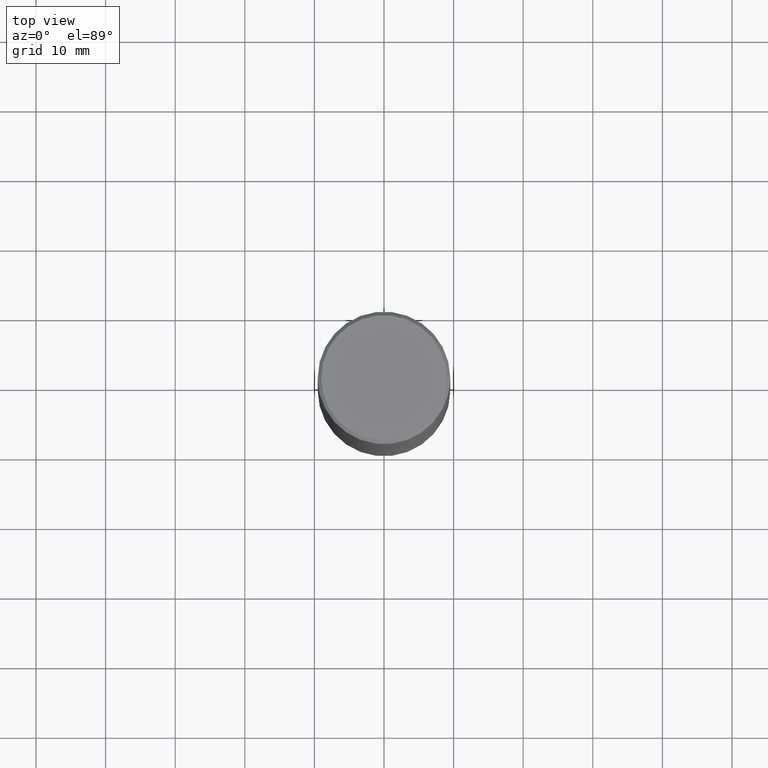
[diagram: clean part render]
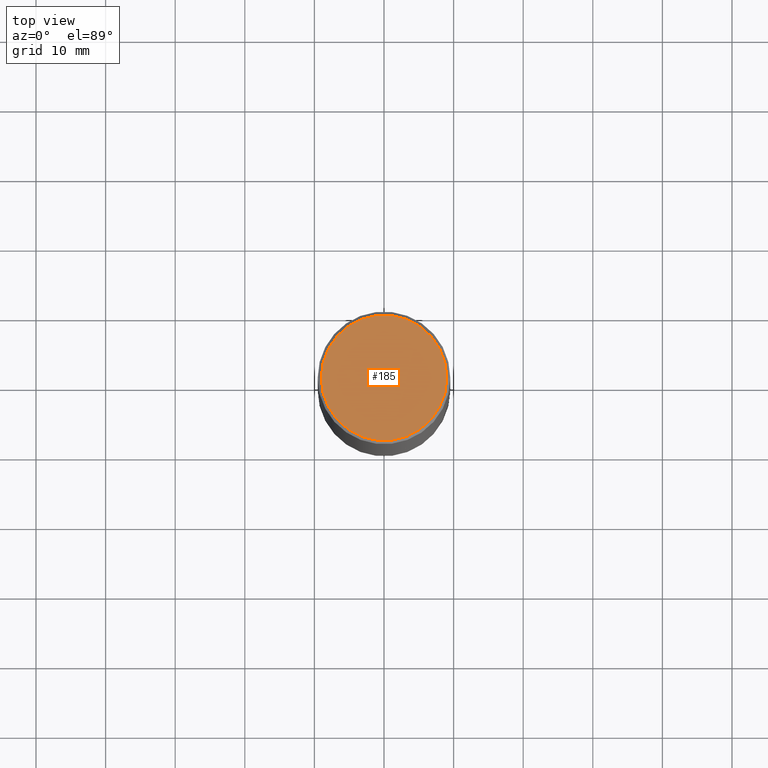
[diagram: same view with one face highlighted and labeled with its STEP entity id]
A machine part, top view. The second image highlights one B-rep face of the part: STEP entity #185.
In plain terms, the highlighted planar face has unit normal (0, -0, -1).
Its self-contained STEP definition (entity closure, byte-faithful):
#11 = FACE_OUTER_BOUND ( 'NONE', #81, .T. ) ;
#29 = EDGE_CURVE ( 'NONE', #92, #67, #360, .T. ) ;
#67 = VERTEX_POINT ( 'NONE', #314 ) ;
#78 = AXIS2_PLACEMENT_3D ( 'NONE', #274, #272, #293 ) ;
#81 = EDGE_LOOP ( 'NONE', ( #236, #263 ) ) ;
#92 = VERTEX_POINT ( 'NONE', #415 ) ;
#96 = EDGE_CURVE ( 'NONE', #67, #92, #399, .T. ) ;
#122 = DIRECTION ( 'NONE',  ( 1.000000000000000000, -6.982962677686265922E-15, 4.878367520217864080E-29 ) ) ;
#142 = AXIS2_PLACEMENT_3D ( 'NONE', #378, #212, #122 ) ;
#167 = DIRECTION ( 'NONE',  ( 2.438088387897960049E-29, -3.491481338843145188E-15, -1.000000000000000000 ) ) ;
#185 = ADVANCED_FACE ( 'NONE', ( #11 ), #275, .F. ) ;
#191 = AXIS2_PLACEMENT_3D ( 'NONE', #337, #167, #362 ) ;
#212 = DIRECTION ( 'NONE',  ( -2.445468806185136597E-29, 3.491481338843145583E-15, 1.000000000000000000 ) ) ;
#236 = ORIENTED_EDGE ( 'NONE', *, *, #29, .T. ) ;
#263 = ORIENTED_EDGE ( 'NONE', *, *, #96, .T. ) ;
#272 = DIRECTION ( 'NONE',  ( -2.445468806185136597E-29, 3.491481338843145583E-15, 1.000000000000000000 ) ) ;
#274 = CARTESIAN_POINT ( 'NONE',  ( -4.801716505942010742E-45, 6.855578583750057175E-31, 1.963515745446189127E-16 ) ) ;
#275 = PLANE ( 'NONE',  #191 ) ;
#293 = DIRECTION ( 'NONE',  ( 1.000000000000000000, -6.982962677686265922E-15, 4.878367520217864080E-29 ) ) ;
#314 = CARTESIAN_POINT ( 'NONE',  ( 0.3549999999999999267, -2.538996582575040259E-15, 1.963515745446364895E-16 ) ) ;
#337 = CARTESIAN_POINT ( 'NONE',  ( 2.478951750578623815E-15, 0.3549999999999999267, -1.141300088017006827E-15 ) ) ;
#360 = CIRCLE ( 'NONE', #78, 0.3549999999999999267 ) ;
#362 = DIRECTION ( 'NONE',  ( -1.000000000000000000, 6.982962677686265922E-15, -4.876176775795935793E-29 ) ) ;
#378 = CARTESIAN_POINT ( 'NONE',  ( -4.801716505942010742E-45, 6.855578583750057175E-31, 1.963515745446189127E-16 ) ) ;
#399 = CIRCLE ( 'NONE', #142, 0.3549999999999999267 ) ;
#415 = CARTESIAN_POINT ( 'NONE',  ( -0.3549999999999999267, 2.513866563967055464E-15, 1.963515745446014591E-16 ) ) ;